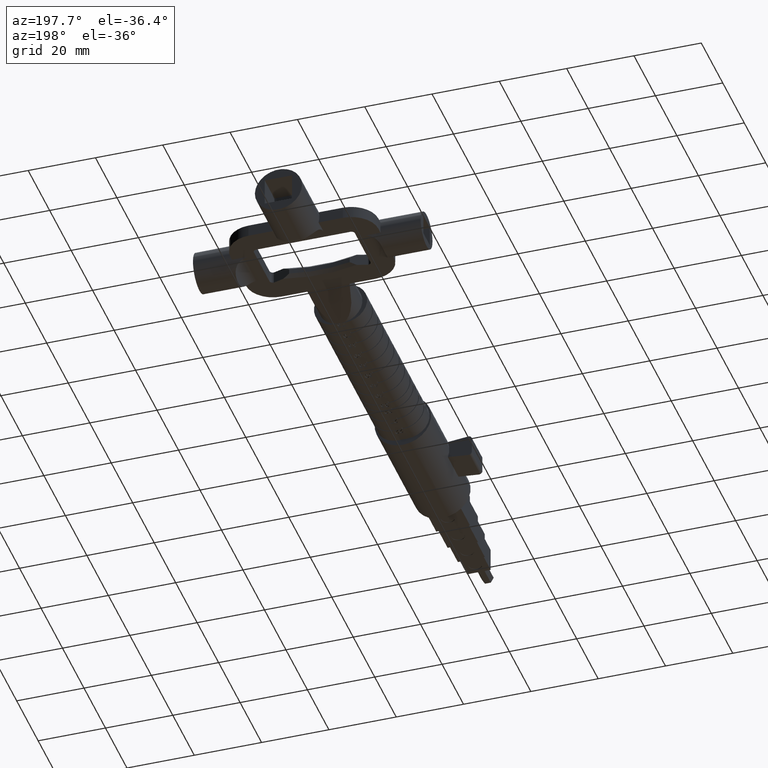
[diagram: clean part render]
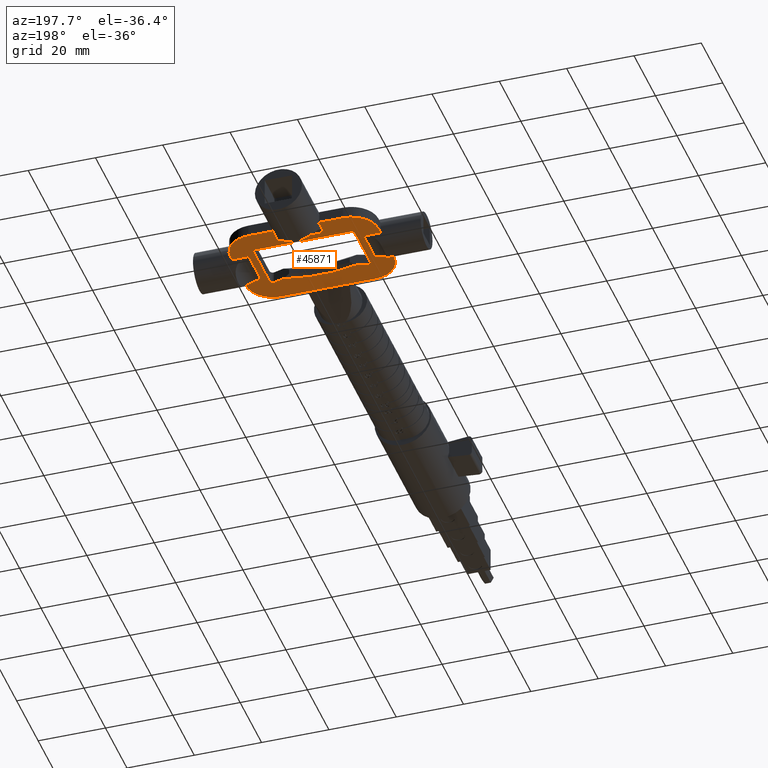
[diagram: same view with one face highlighted and labeled with its STEP entity id]
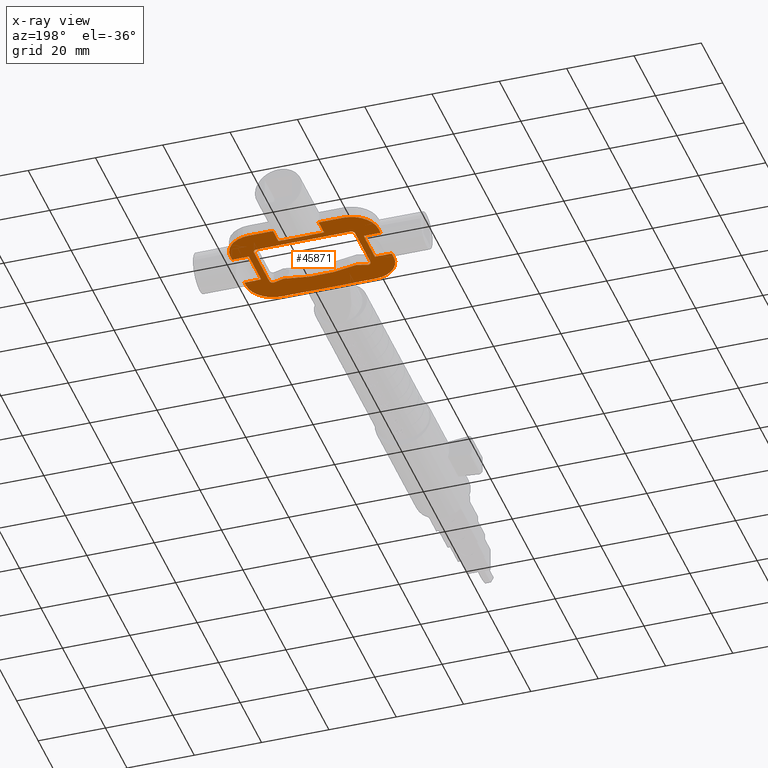
[diagram: x-ray of the same camera — body ghosted, the highlighted face saturated]
A machine part, auxiliary view. The second image highlights one B-rep face of the part: STEP entity #45871.
The next image is the same camera in x-ray: the body ghosted, the highlighted face saturated — about 0% of this face is hidden behind the body in this view.
In plain terms, the highlighted planar face has unit normal (-0, 0, -1).
Its self-contained STEP definition (entity closure, byte-faithful):
#289 = ORIENTED_EDGE ( 'NONE', *, *, #1622, .F. ) ;
#434 = CARTESIAN_POINT ( 'NONE',  ( 22.00000000000000000, 170.8499999999999659, -1.774999999999999911 ) ) ;
#618 = VERTEX_POINT ( 'NONE', #29407 ) ;
#1254 = VERTEX_POINT ( 'NONE', #29667 ) ;
#1469 = FACE_OUTER_BOUND ( 'NONE', #21690, .T. ) ;
#1486 = EDGE_CURVE ( 'NONE', #28631, #18278, #11818, .T. ) ;
#1622 = EDGE_CURVE ( 'NONE', #10310, #22756, #31057, .T. ) ;
#1735 = CARTESIAN_POINT ( 'NONE',  ( -16.99999999999999645, 168.8057060039921566, -1.774999999999999911 ) ) ;
#1751 = VERTEX_POINT ( 'NONE', #51757 ) ;
#2142 = LINE ( 'NONE', #27183, #4822 ) ;
#2288 = VECTOR ( 'NONE', #28696, 1000.000000000000000 ) ;
#2423 = VECTOR ( 'NONE', #24326, 1000.000000000000000 ) ;
#2619 = AXIS2_PLACEMENT_3D ( 'NONE', #23562, #36548, #32294 ) ;
#2780 = LINE ( 'NONE', #44046, #23963 ) ;
#2996 = VERTEX_POINT ( 'NONE', #53844 ) ;
#3003 = CARTESIAN_POINT ( 'NONE',  ( -6.252949304128412322, 148.3500000000000227, -1.774999999999999911 ) ) ;
#3167 = VECTOR ( 'NONE', #7229, 1000.000000000000000 ) ;
#3182 = VECTOR ( 'NONE', #23847, 1000.000000000000000 ) ;
#3222 = CARTESIAN_POINT ( 'NONE',  ( -13.99999999999999822, 170.8499999999999659, -1.774999999999999911 ) ) ;
#3351 = LINE ( 'NONE', #39600, #14664 ) ;
#3610 = CARTESIAN_POINT ( 'NONE',  ( 13.99999999999999822, 170.8499999999999659, -1.774999999999999911 ) ) ;
#4461 = CARTESIAN_POINT ( 'NONE',  ( -13.99999999999999822, 178.8499999999999943, -1.774999999999999911 ) ) ;
#4822 = VECTOR ( 'NONE', #22906, 1000.000000000000000 ) ;
#4835 = DIRECTION ( 'NONE',  ( 9.912705577010328508E-16, -1.000000000000000000, -0.000000000000000000 ) ) ;
#5063 = VECTOR ( 'NONE', #26295, 1000.000000000000000 ) ;
#5198 = VERTEX_POINT ( 'NONE', #12025 ) ;
#5662 = CARTESIAN_POINT ( 'NONE',  ( -13.99999999999999822, 170.8499999999999659, -1.774999999999999911 ) ) ;
#6202 = CARTESIAN_POINT ( 'NONE',  ( -13.99999999999999822, 171.8499999999999659, -1.774999999999999911 ) ) ;
#6514 = CARTESIAN_POINT ( 'NONE',  ( 6.771216655815821994, 178.8500000000000227, -1.774999999999999023 ) ) ;
#6821 = ORIENTED_EDGE ( 'NONE', *, *, #53986, .T. ) ;
#7229 = DIRECTION ( 'NONE',  ( 2.392722035830085874E-16, -1.000000000000000000, -0.000000000000000000 ) ) ;
#7236 = VERTEX_POINT ( 'NONE', #18783 ) ;
#7532 = DIRECTION ( 'NONE',  ( -0.000000000000000000, 0.000000000000000000, -1.000000000000000000 ) ) ;
#7813 = CARTESIAN_POINT ( 'NONE',  ( 16.99999999999999645, 170.8499999999999659, -1.774999999999999911 ) ) ;
#8347 = LINE ( 'NONE', #19941, #52078 ) ;
#8967 = EDGE_CURVE ( 'NONE', #37261, #1751, #13899, .T. ) ;
#8991 = ORIENTED_EDGE ( 'NONE', *, *, #17916, .F. ) ;
#9029 = ORIENTED_EDGE ( 'NONE', *, *, #28251, .T. ) ;
#9030 = CARTESIAN_POINT ( 'NONE',  ( 13.99999999999999822, 178.8499999999999943, -1.774999999999999911 ) ) ;
#9049 = VECTOR ( 'NONE', #25224, 1000.000000000000000 ) ;
#9440 = ORIENTED_EDGE ( 'NONE', *, *, #24792, .F. ) ;
#9830 = VECTOR ( 'NONE', #47644, 1000.000000000000000 ) ;
#10231 = DIRECTION ( 'NONE',  ( -1.000000000000000000, 0.000000000000000000, 0.000000000000000000 ) ) ;
#10245 = CARTESIAN_POINT ( 'NONE',  ( -13.99999999999999822, 156.3500000000000227, -1.774999999999999911 ) ) ;
#10310 = VERTEX_POINT ( 'NONE', #434 ) ;
#10972 = CARTESIAN_POINT ( 'NONE',  ( 6.252949304128414099, 148.3500000000000227, -1.774999999999999911 ) ) ;
#11111 = CARTESIAN_POINT ( 'NONE',  ( -22.00000000000000000, 156.3500000000000227, -1.774999999999999911 ) ) ;
#11449 = FACE_BOUND ( 'NONE', #50021, .T. ) ;
#11818 = LINE ( 'NONE', #49824, #3182 ) ;
#12025 = CARTESIAN_POINT ( 'NONE',  ( -13.99999999999999822, 178.8499999999999943, -1.774999999999999911 ) ) ;
#12239 = VERTEX_POINT ( 'NONE', #6514 ) ;
#12297 = EDGE_CURVE ( 'NONE', #50737, #35314, #17674, .T. ) ;
#13050 = CARTESIAN_POINT ( 'NONE',  ( -13.99999999999999645, 155.3500000000000227, -1.774999999999999911 ) ) ;
#13091 = VECTOR ( 'NONE', #4835, 1000.000000000000000 ) ;
#13253 = VERTEX_POINT ( 'NONE', #19968 ) ;
#13473 = ORIENTED_EDGE ( 'NONE', *, *, #40052, .T. ) ;
#13860 = CIRCLE ( 'NONE', #34699, 8.000000000000003553 ) ;
#13899 = LINE ( 'NONE', #11111, #3167 ) ;
#14282 = DIRECTION ( 'NONE',  ( 0.000000000000000000, 0.000000000000000000, 1.000000000000000000 ) ) ;
#14370 = EDGE_CURVE ( 'NONE', #21963, #43390, #24788, .T. ) ;
#14488 = DIRECTION ( 'NONE',  ( 0.000000000000000000, 0.000000000000000000, 1.000000000000000000 ) ) ;
#14664 = VECTOR ( 'NONE', #39783, 1000.000000000000000 ) ;
#14687 = DIRECTION ( 'NONE',  ( 0.000000000000000000, 0.000000000000000000, 1.000000000000000000 ) ) ;
#14989 = VECTOR ( 'NONE', #40020, 1000.000000000000000 ) ;
#15187 = CARTESIAN_POINT ( 'NONE',  ( -22.00000000000000355, 170.8499999999999659, -1.774999999999999911 ) ) ;
#15342 = EDGE_CURVE ( 'NONE', #37672, #37571, #22059, .T. ) ;
#15456 = DIRECTION ( 'NONE',  ( 0.000000000000000000, 0.000000000000000000, 1.000000000000000000 ) ) ;
#15498 = PLANE ( 'NONE',  #36400 ) ;
#15545 = LINE ( 'NONE', #31715, #22796 ) ;
#15621 = EDGE_CURVE ( 'NONE', #35314, #12239, #18121, .T. ) ;
#15762 = CARTESIAN_POINT ( 'NONE',  ( -13.99999999999999645, 155.3500000000000227, -1.774999999999999911 ) ) ;
#15787 = EDGE_CURVE ( 'NONE', #5198, #40510, #40619, .T. ) ;
#16195 = CARTESIAN_POINT ( 'NONE',  ( -22.00000000000000000, 156.3500000000000227, -1.774999999999999911 ) ) ;
#16247 = LINE ( 'NONE', #7813, #2288 ) ;
#16792 = DIRECTION ( 'NONE',  ( 1.000000000000000000, -0.000000000000000000, -0.000000000000000000 ) ) ;
#16889 = VECTOR ( 'NONE', #41080, 1000.000000000000000 ) ;
#16917 = VERTEX_POINT ( 'NONE', #3003 ) ;
#17288 = CARTESIAN_POINT ( 'NONE',  ( 22.00000000000000000, 169.3314374287782300, -1.774999999999999911 ) ) ;
#17462 = ORIENTED_EDGE ( 'NONE', *, *, #1486, .T. ) ;
#17649 = EDGE_CURVE ( 'NONE', #36177, #41920, #2780, .T. ) ;
#17674 = LINE ( 'NONE', #34452, #14989 ) ;
#17916 = EDGE_CURVE ( 'NONE', #2996, #18278, #20700, .T. ) ;
#17955 = CIRCLE ( 'NONE', #43537, 8.000000000000003553 ) ;
#17994 = CARTESIAN_POINT ( 'NONE',  ( 13.99999999999999822, 155.3500000000000227, -1.774999999999999911 ) ) ;
#18012 = AXIS2_PLACEMENT_3D ( 'NONE', #3610, #38240, #54755 ) ;
#18121 = LINE ( 'NONE', #23879, #28004 ) ;
#18150 = EDGE_CURVE ( 'NONE', #37672, #43390, #31372, .T. ) ;
#18278 = VERTEX_POINT ( 'NONE', #53777 ) ;
#18646 = LINE ( 'NONE', #50799, #25867 ) ;
#18745 = CARTESIAN_POINT ( 'NONE',  ( -13.99999999999999822, 170.8499999999999659, -1.774999999999999911 ) ) ;
#18770 = ORIENTED_EDGE ( 'NONE', *, *, #25240, .T. ) ;
#18775 = DIRECTION ( 'NONE',  ( -1.000000000000000000, -0.000000000000000000, -0.000000000000000000 ) ) ;
#18783 = CARTESIAN_POINT ( 'NONE',  ( -16.99999999999999645, 168.8057060039921566, -1.774999999999999911 ) ) ;
#19035 = ORIENTED_EDGE ( 'NONE', *, *, #54320, .F. ) ;
#19389 = VECTOR ( 'NONE', #43041, 1000.000000000000000 ) ;
#19591 = DIRECTION ( 'NONE',  ( 0.000000000000000000, 0.000000000000000000, 1.000000000000000000 ) ) ;
#19941 = CARTESIAN_POINT ( 'NONE',  ( 22.00000000000000000, 169.3314374287782300, -1.774999999999999911 ) ) ;
#19968 = CARTESIAN_POINT ( 'NONE',  ( -16.99999999999999289, 158.3942939960078604, -1.774999999999999911 ) ) ;
#20700 = LINE ( 'NONE', #25615, #19389 ) ;
#20979 = LINE ( 'NONE', #24135, #2423 ) ;
#20990 = ORIENTED_EDGE ( 'NONE', *, *, #17649, .F. ) ;
#21134 = LINE ( 'NONE', #32711, #25797 ) ;
#21690 = EDGE_LOOP ( 'NONE', ( #53471, #37350, #33400, #46357, #19035, #22562, #31167, #18770, #31971, #34961, #9440, #289, #54661, #6821, #29964, #17462, #8991, #51428, #20990, #23585, #32773, #50839 ) ) ;
#21752 = CARTESIAN_POINT ( 'NONE',  ( 13.99999999999999822, 171.8499999999999659, -1.774999999999999911 ) ) ;
#21963 = VERTEX_POINT ( 'NONE', #17994 ) ;
#22059 = LINE ( 'NONE', #13050, #47960 ) ;
#22411 = VERTEX_POINT ( 'NONE', #48094 ) ;
#22481 = EDGE_CURVE ( 'NONE', #26622, #16917, #21134, .T. ) ;
#22562 = ORIENTED_EDGE ( 'NONE', *, *, #15787, .F. ) ;
#22625 = VERTEX_POINT ( 'NONE', #35087 ) ;
#22646 = EDGE_CURVE ( 'NONE', #48938, #1254, #39015, .T. ) ;
#22756 = VERTEX_POINT ( 'NONE', #9030 ) ;
#22796 = VECTOR ( 'NONE', #18775, 1000.000000000000000 ) ;
#22906 = DIRECTION ( 'NONE',  ( -0.000000000000000000, 1.000000000000000000, -0.000000000000000000 ) ) ;
#23562 = CARTESIAN_POINT ( 'NONE',  ( 13.99999999999999822, 170.8499999999999659, -1.774999999999999911 ) ) ;
#23585 = ORIENTED_EDGE ( 'NONE', *, *, #40588, .F. ) ;
#23847 = DIRECTION ( 'NONE',  ( 1.000000000000000000, 0.000000000000000000, 0.000000000000000000 ) ) ;
#23879 = CARTESIAN_POINT ( 'NONE',  ( 6.771216655815827323, 173.8499999999999943, -1.774999999999999911 ) ) ;
#23963 = VECTOR ( 'NONE', #27539, 1000.000000000000000 ) ;
#24135 = CARTESIAN_POINT ( 'NONE',  ( -13.99999999999999822, 178.8499999999999943, -1.774999999999999911 ) ) ;
#24219 = LINE ( 'NONE', #45990, #9049 ) ;
#24303 = LINE ( 'NONE', #34110, #13091 ) ;
#24326 = DIRECTION ( 'NONE',  ( -1.000000000000000000, -9.912705577010328508E-16, -0.000000000000000000 ) ) ;
#24788 = LINE ( 'NONE', #53533, #16889 ) ;
#24792 = EDGE_CURVE ( 'NONE', #22756, #12239, #20979, .T. ) ;
#25017 = LINE ( 'NONE', #52483, #9830 ) ;
#25224 = DIRECTION ( 'NONE',  ( -0.000000000000000000, -1.000000000000000000, -0.000000000000000000 ) ) ;
#25240 = EDGE_CURVE ( 'NONE', #22411, #50737, #24303, .T. ) ;
#25320 = EDGE_CURVE ( 'NONE', #22411, #5198, #36210, .T. ) ;
#25615 = CARTESIAN_POINT ( 'NONE',  ( 22.00000000000000000, 170.8499999999999659, -1.774999999999999911 ) ) ;
#25797 = VECTOR ( 'NONE', #16792, 1000.000000000000000 ) ;
#25867 = VECTOR ( 'NONE', #33568, 1000.000000000000000 ) ;
#25999 = CIRCLE ( 'NONE', #28024, 1.000000000000002665 ) ;
#26258 = AXIS2_PLACEMENT_3D ( 'NONE', #41336, #15456, #41147 ) ;
#26295 = DIRECTION ( 'NONE',  ( -1.000000000000000000, -9.912705577010328508E-16, -0.000000000000000000 ) ) ;
#26440 = DIRECTION ( 'NONE',  ( -1.000000000000000000, 0.000000000000000000, 0.000000000000000000 ) ) ;
#26622 = VERTEX_POINT ( 'NONE', #52920 ) ;
#26761 = CARTESIAN_POINT ( 'NONE',  ( 10.88406708194083805, 156.2847798754177120, -1.774999999999999911 ) ) ;
#27183 = CARTESIAN_POINT ( 'NONE',  ( 22.00000000000000000, 170.8499999999999659, -1.774999999999999911 ) ) ;
#27539 = DIRECTION ( 'NONE',  ( 1.000000000000000000, -0.000000000000000000, -0.000000000000000000 ) ) ;
#28004 = VECTOR ( 'NONE', #49479, 1000.000000000000000 ) ;
#28024 = AXIS2_PLACEMENT_3D ( 'NONE', #39974, #47938, #26440 ) ;
#28251 = EDGE_CURVE ( 'NONE', #34518, #48938, #15545, .T. ) ;
#28608 = ORIENTED_EDGE ( 'NONE', *, *, #54484, .T. ) ;
#28631 = VERTEX_POINT ( 'NONE', #30009 ) ;
#28667 = ORIENTED_EDGE ( 'NONE', *, *, #35893, .T. ) ;
#28696 = DIRECTION ( 'NONE',  ( -0.000000000000000000, -1.000000000000000000, -0.000000000000000000 ) ) ;
#28813 = VECTOR ( 'NONE', #53980, 1000.000000000000000 ) ;
#29369 = CARTESIAN_POINT ( 'NONE',  ( -15.00000000000000000, 156.3500000000000227, -1.774999999999999911 ) ) ;
#29407 = CARTESIAN_POINT ( 'NONE',  ( 15.00000000000000355, 156.3500000000000227, -1.774999999999999911 ) ) ;
#29528 = VERTEX_POINT ( 'NONE', #17288 ) ;
#29667 = CARTESIAN_POINT ( 'NONE',  ( -15.00000000000000000, 170.8499999999999659, -1.774999999999999911 ) ) ;
#29964 = ORIENTED_EDGE ( 'NONE', *, *, #54738, .T. ) ;
#30009 = CARTESIAN_POINT ( 'NONE',  ( 16.99999999999999645, 157.8685625712217586, -1.774999999999999911 ) ) ;
#30490 = CIRCLE ( 'NONE', #2619, 1.000000000000000888 ) ;
#30667 = VERTEX_POINT ( 'NONE', #43816 ) ;
#31057 = CIRCLE ( 'NONE', #18012, 8.000000000000017764 ) ;
#31167 = ORIENTED_EDGE ( 'NONE', *, *, #25320, .F. ) ;
#31372 = CIRCLE ( 'NONE', #26258, 41.99999999999995737 ) ;
#31715 = CARTESIAN_POINT ( 'NONE',  ( -13.99999999999999822, 171.8499999999999659, -1.774999999999999911 ) ) ;
#31971 = ORIENTED_EDGE ( 'NONE', *, *, #12297, .T. ) ;
#32118 = CIRCLE ( 'NONE', #52902, 1.000000000000000888 ) ;
#32294 = DIRECTION ( 'NONE',  ( 1.000000000000000000, 0.000000000000000000, 0.000000000000000000 ) ) ;
#32711 = CARTESIAN_POINT ( 'NONE',  ( 13.99999999999999645, 148.3500000000000227, -1.774999999999999911 ) ) ;
#32773 = ORIENTED_EDGE ( 'NONE', *, *, #22481, .F. ) ;
#32779 = CARTESIAN_POINT ( 'NONE',  ( 16.99999999999999645, 169.3314374287782300, -1.774999999999999911 ) ) ;
#33400 = ORIENTED_EDGE ( 'NONE', *, *, #50918, .T. ) ;
#33568 = DIRECTION ( 'NONE',  ( -2.392722035830085874E-16, 1.000000000000000000, -0.000000000000000000 ) ) ;
#33960 = CARTESIAN_POINT ( 'NONE',  ( -6.771216655816171048, 173.8499999999999943, -1.774999999999999911 ) ) ;
#33971 = VERTEX_POINT ( 'NONE', #32779 ) ;
#33980 = DIRECTION ( 'NONE',  ( -0.9578262852211542056, -0.2873478855663358922, -0.000000000000000000 ) ) ;
#34110 = CARTESIAN_POINT ( 'NONE',  ( -6.771216655816175489, 178.8500000000000227, -1.774999999999999023 ) ) ;
#34452 = CARTESIAN_POINT ( 'NONE',  ( -14.00000000000000178, 173.8499999999999659, -1.774999999999999911 ) ) ;
#34518 = VERTEX_POINT ( 'NONE', #21752 ) ;
#34699 = AXIS2_PLACEMENT_3D ( 'NONE', #40185, #14282, #52253 ) ;
#34961 = ORIENTED_EDGE ( 'NONE', *, *, #15621, .T. ) ;
#35087 = CARTESIAN_POINT ( 'NONE',  ( -22.00000000000000000, 168.8057060039921282, -1.775000000000007683 ) ) ;
#35270 = DIRECTION ( 'NONE',  ( -1.000000000000000000, 0.000000000000000000, 0.000000000000000000 ) ) ;
#35314 = VERTEX_POINT ( 'NONE', #51679 ) ;
#35436 = ORIENTED_EDGE ( 'NONE', *, *, #47936, .T. ) ;
#35893 = EDGE_CURVE ( 'NONE', #1254, #51527, #24219, .T. ) ;
#36177 = VERTEX_POINT ( 'NONE', #10972 ) ;
#36210 = LINE ( 'NONE', #4461, #5063 ) ;
#36400 = AXIS2_PLACEMENT_3D ( 'NONE', #3222, #7532, #45094 ) ;
#36441 = CARTESIAN_POINT ( 'NONE',  ( -13.99999999999999822, 156.3500000000000227, -1.774999999999999911 ) ) ;
#36548 = DIRECTION ( 'NONE',  ( 0.000000000000000000, 0.000000000000000000, 1.000000000000000000 ) ) ;
#37016 = EDGE_CURVE ( 'NONE', #7236, #22625, #44104, .T. ) ;
#37261 = VERTEX_POINT ( 'NONE', #42270 ) ;
#37350 = ORIENTED_EDGE ( 'NONE', *, *, #47334, .T. ) ;
#37571 = VERTEX_POINT ( 'NONE', #15762 ) ;
#37672 = VERTEX_POINT ( 'NONE', #54464 ) ;
#38240 = DIRECTION ( 'NONE',  ( 0.000000000000000000, 0.000000000000000000, 1.000000000000000000 ) ) ;
#39015 = CIRCLE ( 'NONE', #40860, 1.000000000000000888 ) ;
#39152 = DIRECTION ( 'NONE',  ( 0.000000000000000000, 0.000000000000000000, 1.000000000000000000 ) ) ;
#39417 = LINE ( 'NONE', #16195, #28813 ) ;
#39553 = DIRECTION ( 'NONE',  ( -1.000000000000000000, -2.392722035830085874E-16, 0.000000000000000000 ) ) ;
#39600 = CARTESIAN_POINT ( 'NONE',  ( -22.00000000000000000, 158.3942939960078604, -1.774999999999999911 ) ) ;
#39783 = DIRECTION ( 'NONE',  ( 1.000000000000000000, 2.392722035830085874E-16, -0.000000000000000000 ) ) ;
#39854 = DIRECTION ( 'NONE',  ( 1.000000000000000000, 0.000000000000000000, 0.000000000000000000 ) ) ;
#39974 = CARTESIAN_POINT ( 'NONE',  ( 13.99999999999999822, 156.3500000000000227, -1.774999999999999911 ) ) ;
#39978 = EDGE_CURVE ( 'NONE', #29528, #10310, #2142, .T. ) ;
#40020 = DIRECTION ( 'NONE',  ( 1.000000000000000000, 9.912705577010328508E-16, -0.000000000000000000 ) ) ;
#40052 = EDGE_CURVE ( 'NONE', #21963, #618, #25999, .T. ) ;
#40185 = CARTESIAN_POINT ( 'NONE',  ( 13.99999999999999822, 156.3500000000000227, -1.774999999999999911 ) ) ;
#40302 = CARTESIAN_POINT ( 'NONE',  ( 13.99999999999999645, 148.3500000000000227, -1.774999999999999911 ) ) ;
#40510 = VERTEX_POINT ( 'NONE', #15187 ) ;
#40588 = EDGE_CURVE ( 'NONE', #16917, #36177, #49847, .T. ) ;
#40619 = CIRCLE ( 'NONE', #41101, 8.000000000000007105 ) ;
#40860 = AXIS2_PLACEMENT_3D ( 'NONE', #5662, #39152, #35270 ) ;
#41080 = DIRECTION ( 'NONE',  ( -0.9578262852211542056, 0.2873478855663360587, -0.000000000000000000 ) ) ;
#41101 = AXIS2_PLACEMENT_3D ( 'NONE', #18745, #14488, #10231 ) ;
#41147 = DIRECTION ( 'NONE',  ( -1.000000000000000000, 0.000000000000000000, 0.000000000000000000 ) ) ;
#41167 = ORIENTED_EDGE ( 'NONE', *, *, #15342, .F. ) ;
#41336 = CARTESIAN_POINT ( 'NONE',  ( 3.163863720612598832E-15, 196.8499999999999091, -1.774999999999999911 ) ) ;
#41920 = VERTEX_POINT ( 'NONE', #40302 ) ;
#42184 = DIRECTION ( 'NONE',  ( 1.000000000000000000, 0.000000000000000000, -0.000000000000000000 ) ) ;
#42270 = CARTESIAN_POINT ( 'NONE',  ( -22.00000000000000000, 158.3942939960078604, -1.774999999999999911 ) ) ;
#43041 = DIRECTION ( 'NONE',  ( -0.000000000000000000, 1.000000000000000000, -0.000000000000000000 ) ) ;
#43390 = VERTEX_POINT ( 'NONE', #26761 ) ;
#43392 = VECTOR ( 'NONE', #39553, 1000.000000000000000 ) ;
#43417 = EDGE_CURVE ( 'NONE', #30667, #34518, #30490, .T. ) ;
#43537 = AXIS2_PLACEMENT_3D ( 'NONE', #36441, #19591, #54057 ) ;
#43816 = CARTESIAN_POINT ( 'NONE',  ( 15.00000000000000000, 170.8499999999999659, -1.774999999999999911 ) ) ;
#43884 = ORIENTED_EDGE ( 'NONE', *, *, #22646, .T. ) ;
#44046 = CARTESIAN_POINT ( 'NONE',  ( 13.99999999999999645, 148.3500000000000227, -1.774999999999999911 ) ) ;
#44104 = LINE ( 'NONE', #1735, #43392 ) ;
#44872 = ORIENTED_EDGE ( 'NONE', *, *, #18150, .T. ) ;
#45094 = DIRECTION ( 'NONE',  ( -1.000000000000000000, 0.000000000000000000, 0.000000000000000000 ) ) ;
#45871 = ADVANCED_FACE ( 'NONE', ( #1469, #11449 ), #15498, .T. ) ;
#45990 = CARTESIAN_POINT ( 'NONE',  ( -15.00000000000000000, 156.3500000000000227, -1.774999999999999911 ) ) ;
#46357 = ORIENTED_EDGE ( 'NONE', *, *, #37016, .T. ) ;
#46403 = ORIENTED_EDGE ( 'NONE', *, *, #14370, .F. ) ;
#47019 = ORIENTED_EDGE ( 'NONE', *, *, #43417, .T. ) ;
#47190 = CARTESIAN_POINT ( 'NONE',  ( 0.000000000000000000, 148.3500000000000227, -1.774999999999999911 ) ) ;
#47334 = EDGE_CURVE ( 'NONE', #37261, #13253, #3351, .T. ) ;
#47644 = DIRECTION ( 'NONE',  ( -2.392722035830085874E-16, 1.000000000000000000, -0.000000000000000000 ) ) ;
#47936 = EDGE_CURVE ( 'NONE', #618, #30667, #18646, .T. ) ;
#47938 = DIRECTION ( 'NONE',  ( 0.000000000000000000, 0.000000000000000000, 1.000000000000000000 ) ) ;
#47960 = VECTOR ( 'NONE', #33980, 1000.000000000000227 ) ;
#48094 = CARTESIAN_POINT ( 'NONE',  ( -6.771216655816175489, 178.8500000000000227, -1.774999999999999023 ) ) ;
#48318 = EDGE_CURVE ( 'NONE', #1751, #26622, #17955, .T. ) ;
#48938 = VERTEX_POINT ( 'NONE', #6202 ) ;
#49285 = EDGE_CURVE ( 'NONE', #41920, #2996, #13860, .T. ) ;
#49479 = DIRECTION ( 'NONE',  ( -9.912705577010328508E-16, 1.000000000000000000, 0.000000000000000000 ) ) ;
#49824 = CARTESIAN_POINT ( 'NONE',  ( 16.99999999999999645, 157.8685625712217586, -1.774999999999999911 ) ) ;
#49847 = LINE ( 'NONE', #47190, #53832 ) ;
#50021 = EDGE_LOOP ( 'NONE', ( #41167, #44872, #46403, #13473, #35436, #47019, #9029, #43884, #28667, #28608 ) ) ;
#50737 = VERTEX_POINT ( 'NONE', #33960 ) ;
#50799 = CARTESIAN_POINT ( 'NONE',  ( 15.00000000000000000, 170.8499999999999659, -1.774999999999999911 ) ) ;
#50839 = ORIENTED_EDGE ( 'NONE', *, *, #48318, .F. ) ;
#50918 = EDGE_CURVE ( 'NONE', #13253, #7236, #25017, .T. ) ;
#51428 = ORIENTED_EDGE ( 'NONE', *, *, #49285, .F. ) ;
#51527 = VERTEX_POINT ( 'NONE', #29369 ) ;
#51679 = CARTESIAN_POINT ( 'NONE',  ( 6.771216655815827323, 173.8499999999999943, -1.774999999999999911 ) ) ;
#51757 = CARTESIAN_POINT ( 'NONE',  ( -22.00000000000000000, 156.3500000000000227, -1.774999999999999911 ) ) ;
#52078 = VECTOR ( 'NONE', #53494, 1000.000000000000000 ) ;
#52253 = DIRECTION ( 'NONE',  ( -1.000000000000000000, 0.000000000000000000, 0.000000000000000000 ) ) ;
#52483 = CARTESIAN_POINT ( 'NONE',  ( -16.99999999999999645, 170.8499999999999659, -1.774999999999999911 ) ) ;
#52902 = AXIS2_PLACEMENT_3D ( 'NONE', #10245, #14687, #39854 ) ;
#52920 = CARTESIAN_POINT ( 'NONE',  ( -14.00000000000000000, 148.3500000000000227, -1.774999999999999911 ) ) ;
#53471 = ORIENTED_EDGE ( 'NONE', *, *, #8967, .F. ) ;
#53494 = DIRECTION ( 'NONE',  ( -1.000000000000000000, -0.000000000000000000, -0.000000000000000000 ) ) ;
#53533 = CARTESIAN_POINT ( 'NONE',  ( 9.000000000000001776, 156.8499999999999659, -1.774999999999999911 ) ) ;
#53777 = CARTESIAN_POINT ( 'NONE',  ( 22.00000000000000000, 157.8685625712217586, -1.774999999999999911 ) ) ;
#53832 = VECTOR ( 'NONE', #42184, 1000.000000000000000 ) ;
#53844 = CARTESIAN_POINT ( 'NONE',  ( 22.00000000000000355, 156.3500000000000227, -1.774999999999999911 ) ) ;
#53980 = DIRECTION ( 'NONE',  ( 2.392722035830085874E-16, -1.000000000000000000, -0.000000000000000000 ) ) ;
#53986 = EDGE_CURVE ( 'NONE', #29528, #33971, #8347, .T. ) ;
#54057 = DIRECTION ( 'NONE',  ( 1.000000000000000000, 0.000000000000000000, 0.000000000000000000 ) ) ;
#54320 = EDGE_CURVE ( 'NONE', #40510, #22625, #39417, .T. ) ;
#54464 = CARTESIAN_POINT ( 'NONE',  ( -10.88406708194083983, 156.2847798754177120, -1.774999999999999911 ) ) ;
#54484 = EDGE_CURVE ( 'NONE', #51527, #37571, #32118, .T. ) ;
#54661 = ORIENTED_EDGE ( 'NONE', *, *, #39978, .F. ) ;
#54738 = EDGE_CURVE ( 'NONE', #33971, #28631, #16247, .T. ) ;
#54755 = DIRECTION ( 'NONE',  ( 1.000000000000000000, 0.000000000000000000, 0.000000000000000000 ) ) ;